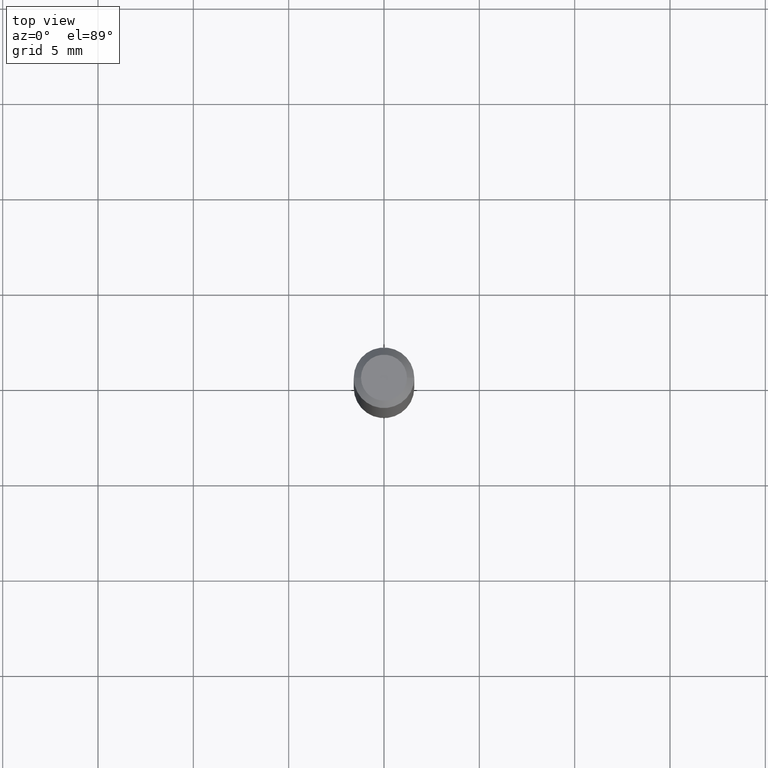
[diagram: clean part render]
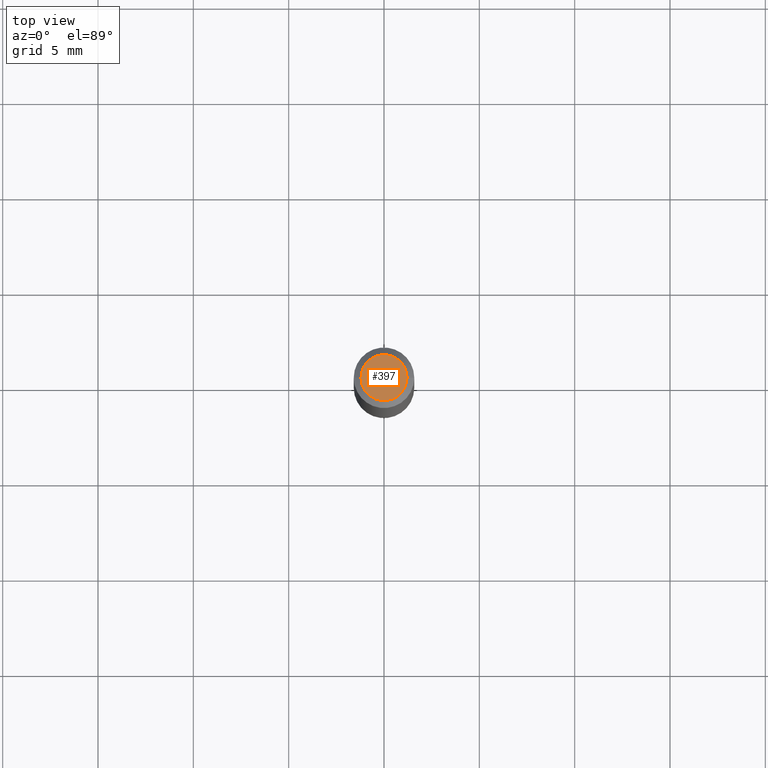
[diagram: same view with one face highlighted and labeled with its STEP entity id]
A machine part, top view. The second image highlights one B-rep face of the part: STEP entity #397.
In plain terms, the highlighted planar face has unit normal (0, -0, -1).
Its self-contained STEP definition (entity closure, byte-faithful):
#36 = VERTEX_POINT ( 'NONE', #183 ) ;
#38 = VERTEX_POINT ( 'NONE', #411 ) ;
#40 = EDGE_CURVE ( 'NONE', #38, #36, #462, .T. ) ;
#41 = PLANE ( 'NONE',  #296 ) ;
#48 = DIRECTION ( 'NONE',  ( 1.000000000000000000, -6.982962677686267499E-15, 4.852736867747366768E-29 ) ) ;
#58 = DIRECTION ( 'NONE',  ( -2.445468806185136597E-29, 3.491481338843145583E-15, 1.000000000000000000 ) ) ;
#79 = AXIS2_PLACEMENT_3D ( 'NONE', #289, #216, #48 ) ;
#108 = DIRECTION ( 'NONE',  ( -1.000000000000000000, 6.982962677686265922E-15, -4.876176775795935793E-29 ) ) ;
#174 = FACE_OUTER_BOUND ( 'NONE', #302, .T. ) ;
#177 = CARTESIAN_POINT ( 'NONE',  ( 3.316907271900976096E-16, 0.04749999999999999362, -4.881874950129340235E-17 ) ) ;
#183 = CARTESIAN_POINT ( 'NONE',  ( 0.04749999999999999362, -4.035134999187574186E-16, 2.340532281875146013E-16 ) ) ;
#216 = DIRECTION ( 'NONE',  ( -2.445468806185136597E-29, 3.491481338843145583E-15, 1.000000000000000000 ) ) ;
#250 = AXIS2_PLACEMENT_3D ( 'NONE', #393, #58, #417 ) ;
#289 = CARTESIAN_POINT ( 'NONE',  ( -5.723698685194923234E-45, 8.171924785126947293E-31, 2.340532281875119882E-16 ) ) ;
#296 = AXIS2_PLACEMENT_3D ( 'NONE', #177, #396, #108 ) ;
#302 = EDGE_LOOP ( 'NONE', ( #306, #363 ) ) ;
#306 = ORIENTED_EDGE ( 'NONE', *, *, #40, .T. ) ;
#351 = CIRCLE ( 'NONE', #250, 0.04749999999999999362 ) ;
#363 = ORIENTED_EDGE ( 'NONE', *, *, #437, .T. ) ;
#393 = CARTESIAN_POINT ( 'NONE',  ( -5.723698685194923234E-45, 8.171924785126947293E-31, 2.340532281875119882E-16 ) ) ;
#396 = DIRECTION ( 'NONE',  ( 2.438088387897960049E-29, -3.491481338843145188E-15, -1.000000000000000000 ) ) ;
#397 = ADVANCED_FACE ( 'NONE', ( #174 ), #41, .F. ) ;
#411 = CARTESIAN_POINT ( 'NONE',  ( -0.04749999999999999362, 3.578768372314215436E-16, 2.340532281875096216E-16 ) ) ;
#417 = DIRECTION ( 'NONE',  ( 1.000000000000000000, -6.982962677686267499E-15, 4.852736867747366768E-29 ) ) ;
#437 = EDGE_CURVE ( 'NONE', #36, #38, #351, .T. ) ;
#462 = CIRCLE ( 'NONE', #79, 0.04749999999999999362 ) ;